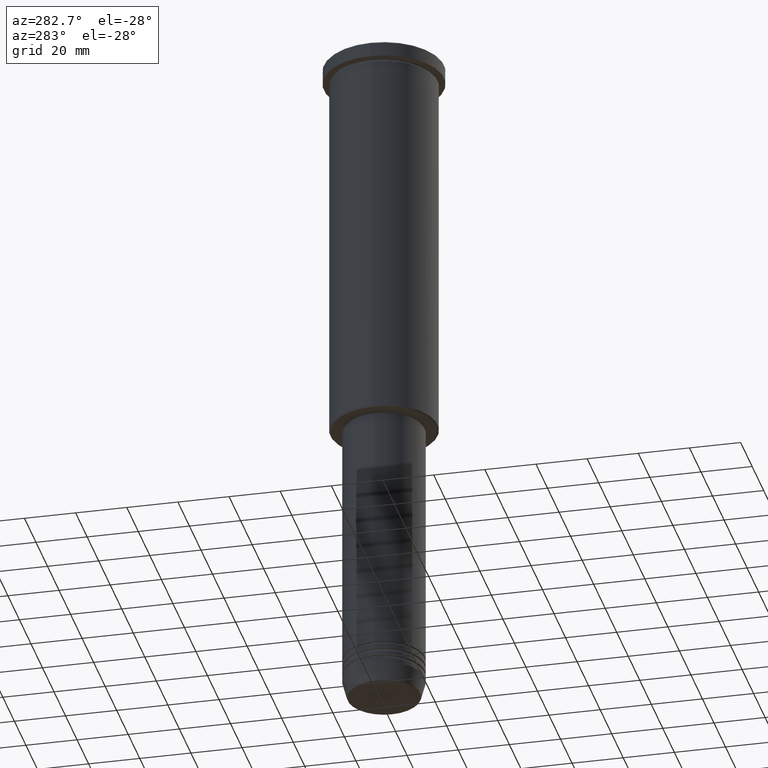
[diagram: clean part render]
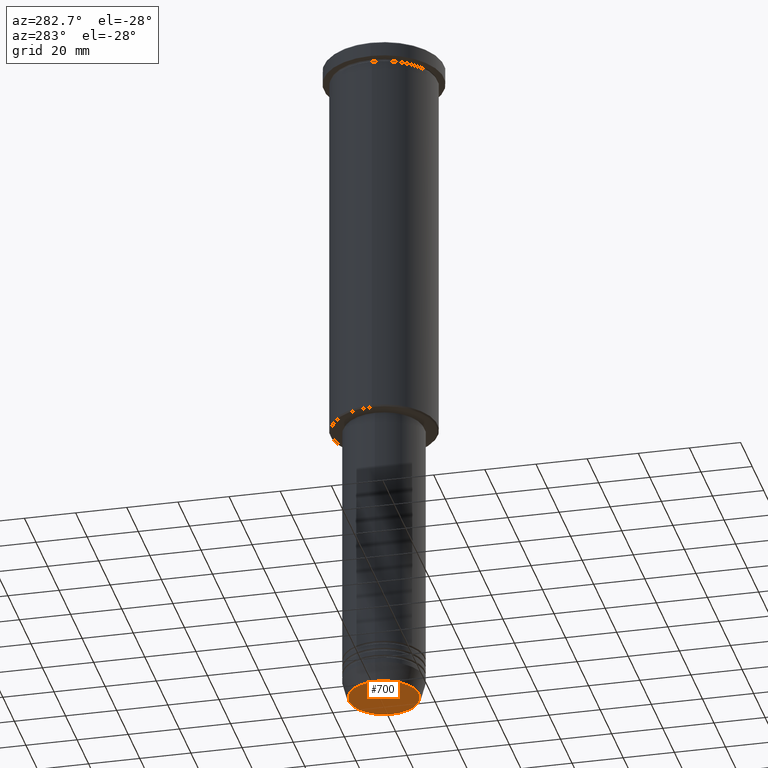
[diagram: same view with one face highlighted and labeled with its STEP entity id]
A machine part, auxiliary view. The second image highlights one B-rep face of the part: STEP entity #700.
In plain terms, the highlighted planar face has unit normal (0, -0, 1).
Its self-contained STEP definition (entity closure, byte-faithful):
#65 = DIRECTION ( 'NONE',  ( 0.000000000000000000, -0.000000000000000000, 1.000000000000000000 ) ) ;
#86 = DIRECTION ( 'NONE',  ( 0.000000000000000000, 0.000000000000000000, -1.000000000000000000 ) ) ;
#193 = DIRECTION ( 'NONE',  ( 1.000000000000000000, 0.000000000000000000, 0.000000000000000000 ) ) ;
#270 = DIRECTION ( 'NONE',  ( 1.000000000000000000, 0.000000000000000000, 0.000000000000000000 ) ) ;
#282 = CIRCLE ( 'NONE', #473, 13.74069215899265828 ) ;
#327 = EDGE_CURVE ( 'NONE', #653, #508, #282, .T. ) ;
#329 = CARTESIAN_POINT ( 'NONE',  ( 13.74069215899265828, 0.000000000000000000, -271.0000000000000000 ) ) ;
#342 = FACE_OUTER_BOUND ( 'NONE', #686, .T. ) ;
#355 = DIRECTION ( 'NONE',  ( 1.000000000000000000, 0.000000000000000000, 0.000000000000000000 ) ) ;
#419 = AXIS2_PLACEMENT_3D ( 'NONE', #645, #471, #193 ) ;
#441 = AXIS2_PLACEMENT_3D ( 'NONE', #710, #65, #270 ) ;
#471 = DIRECTION ( 'NONE',  ( 0.000000000000000000, 0.000000000000000000, -1.000000000000000000 ) ) ;
#473 = AXIS2_PLACEMENT_3D ( 'NONE', #1172, #86, #355 ) ;
#502 = EDGE_CURVE ( 'NONE', #508, #653, #1049, .T. ) ;
#508 = VERTEX_POINT ( 'NONE', #666 ) ;
#628 = PLANE ( 'NONE',  #441 ) ;
#645 = CARTESIAN_POINT ( 'NONE',  ( 0.000000000000000000, 0.000000000000000000, -271.0000000000000000 ) ) ;
#653 = VERTEX_POINT ( 'NONE', #329 ) ;
#666 = CARTESIAN_POINT ( 'NONE',  ( -13.74069215899265828, 1.712322416342415986E-15, -271.0000000000000000 ) ) ;
#686 = EDGE_LOOP ( 'NONE', ( #1138, #761 ) ) ;
#700 = ADVANCED_FACE ( 'NONE', ( #342 ), #628, .F. ) ;
#710 = CARTESIAN_POINT ( 'NONE',  ( 0.000000000000000000, 0.000000000000000000, -271.0000000000000000 ) ) ;
#761 = ORIENTED_EDGE ( 'NONE', *, *, #502, .T. ) ;
#1049 = CIRCLE ( 'NONE', #419, 13.74069215899265828 ) ;
#1138 = ORIENTED_EDGE ( 'NONE', *, *, #327, .T. ) ;
#1172 = CARTESIAN_POINT ( 'NONE',  ( 0.000000000000000000, 0.000000000000000000, -271.0000000000000000 ) ) ;